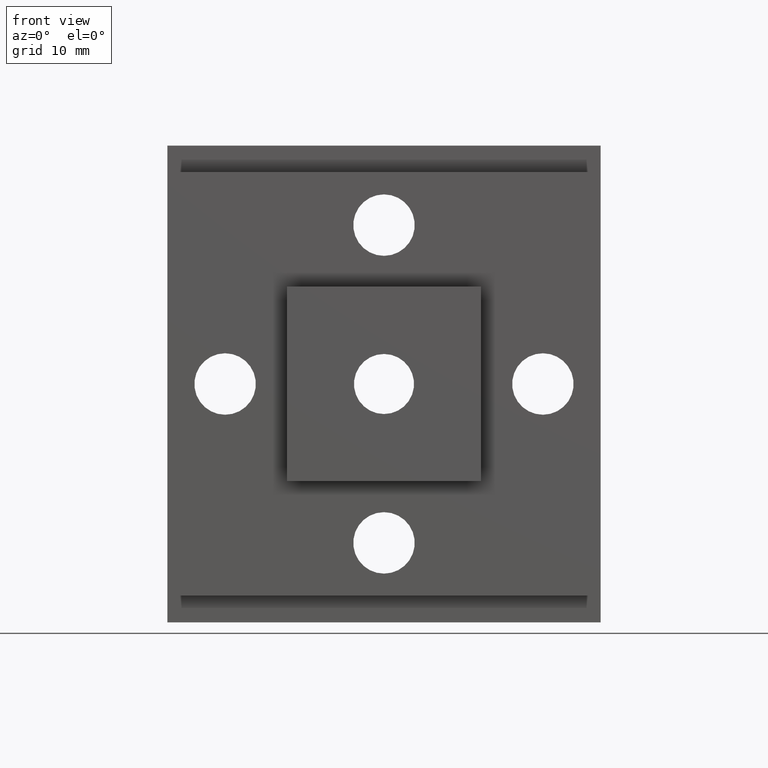
[diagram: clean part render]
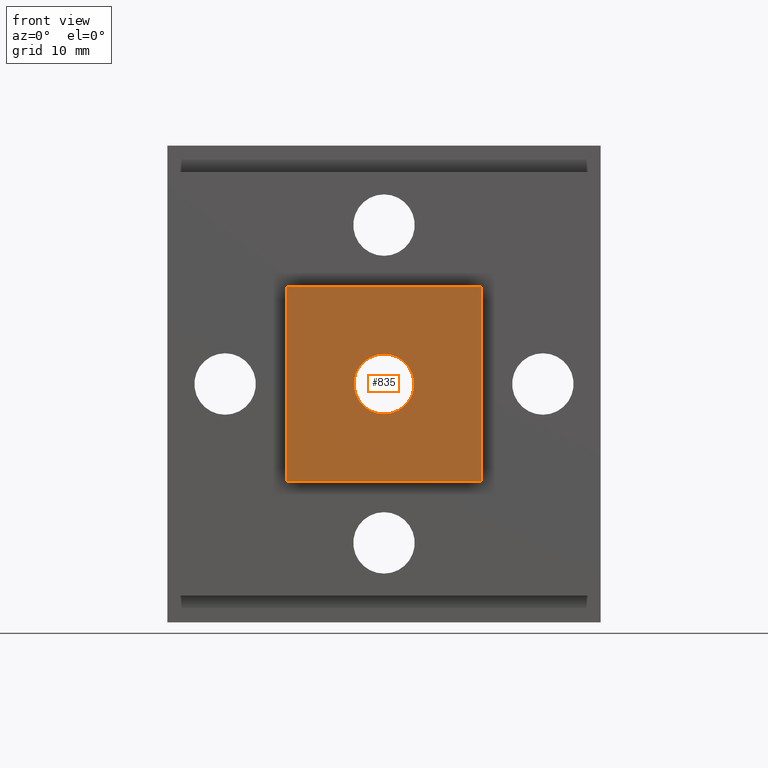
[diagram: same view with one face highlighted and labeled with its STEP entity id]
A machine part, front view. The second image highlights one B-rep face of the part: STEP entity #835.
In plain terms, the highlighted planar face has unit normal (0, -1, -0).
Its self-contained STEP definition (entity closure, byte-faithful):
#9 = VECTOR ( 'NONE', #1247, 39.37007874015748100 ) ;
#53 = EDGE_CURVE ( 'NONE', #1544, #1440, #626, .T. ) ;
#59 = EDGE_CURVE ( 'NONE', #1459, #1444, #621, .T. ) ;
#72 = AXIS2_PLACEMENT_3D ( 'NONE', #1275, #1267, #1268 ) ;
#87 = EDGE_CURVE ( 'NONE', #1461, #1480, #512, .T. ) ;
#89 = EDGE_CURVE ( 'NONE', #1440, #1459, #509, .T. ) ;
#104 = EDGE_CURVE ( 'NONE', #1444, #1544, #619, .T. ) ;
#107 = AXIS2_PLACEMENT_3D ( 'NONE', #1520, #1519, #1518 ) ;
#156 = VECTOR ( 'NONE', #1514, 39.37007874015748100 ) ;
#235 = CARTESIAN_POINT ( 'NONE',  ( 0.0000000000000000000, -0.1489999999999999700, 0.0000000000000000000 ) ) ;
#236 = DIRECTION ( 'NONE',  ( 1.309289925027225900E-017, -1.000000000000000000, 3.229997658014709200E-019 ) ) ;
#237 = DIRECTION ( 'NONE',  ( 2.081668171172166700E-017, 0.0000000000000000000, -1.000000000000000000 ) ) ;
#327 = CARTESIAN_POINT ( 'NONE',  ( -0.4204999999999992600, -0.1489999999999999700, 0.4205000000000000400 ) ) ;
#331 = CARTESIAN_POINT ( 'NONE',  ( 0.4204999999999995400, -0.1489999999999999700, -0.4204999999999989900 ) ) ;
#346 = CARTESIAN_POINT ( 'NONE',  ( -0.4204999999999992600, -0.1489999999999999700, -0.4204999999999989900 ) ) ;
#348 = CARTESIAN_POINT ( 'NONE',  ( 2.706168622523815700E-018, -0.1489999999999999700, -0.1299999999999999500 ) ) ;
#366 = CARTESIAN_POINT ( 'NONE',  ( 2.507314614903773900E-017, -0.1489999999999999700, 0.1300000000000000000 ) ) ;
#369 = CARTESIAN_POINT ( 'NONE',  ( 0.4204999999999995400, -0.1489999999999999700, 0.4205000000000000400 ) ) ;
#509 = LINE ( 'NONE', #1517, #156 ) ;
#512 = CIRCLE ( 'NONE', #107, 0.1299999999999999500 ) ;
#599 = EDGE_LOOP ( 'NONE', ( #1580, #1686 ) ) ;
#602 = EDGE_LOOP ( 'NONE', ( #1573, #1581, #1575, #1577 ) ) ;
#611 = VECTOR ( 'NONE', #1569, 39.37007874015748100 ) ;
#619 = LINE ( 'NONE', #1128, #9 ) ;
#621 = LINE ( 'NONE', #1509, #611 ) ;
#624 = VECTOR ( 'NONE', #1506, 39.37007874015748100 ) ;
#626 = LINE ( 'NONE', #1505, #624 ) ;
#835 = ADVANCED_FACE ( 'NONE', ( #1384, #1386 ), #1274, .T. ) ;
#1012 = CIRCLE ( 'NONE', #1300, 0.1299999999999999500 ) ;
#1128 = CARTESIAN_POINT ( 'NONE',  ( 0.4204999999999995400, -0.1489999999999999700, 0.4205000000000000400 ) ) ;
#1247 = DIRECTION ( 'NONE',  ( -2.644416514201875300E-016, -3.229997658014699600E-019, 1.000000000000000000 ) ) ;
#1267 = DIRECTION ( 'NONE',  ( 1.309289925027225900E-017, -1.000000000000000000, -3.229997658014709200E-019 ) ) ;
#1268 = DIRECTION ( 'NONE',  ( 2.081668171172166700E-017, 3.229997658014712100E-019, -1.000000000000000000 ) ) ;
#1274 = PLANE ( 'NONE',  #72 ) ;
#1275 = CARTESIAN_POINT ( 'NONE',  ( -0.4204999999999992600, -0.1489999999999999700, -0.4204999999999989900 ) ) ;
#1300 = AXIS2_PLACEMENT_3D ( 'NONE', #235, #236, #237 ) ;
#1344 = EDGE_CURVE ( 'NONE', #1480, #1461, #1012, .T. ) ;
#1384 = FACE_BOUND ( 'NONE', #599, .T. ) ;
#1386 = FACE_OUTER_BOUND ( 'NONE', #602, .T. ) ;
#1440 = VERTEX_POINT ( 'NONE', #327 ) ;
#1444 = VERTEX_POINT ( 'NONE', #331 ) ;
#1459 = VERTEX_POINT ( 'NONE', #346 ) ;
#1461 = VERTEX_POINT ( 'NONE', #348 ) ;
#1480 = VERTEX_POINT ( 'NONE', #366 ) ;
#1505 = CARTESIAN_POINT ( 'NONE',  ( -0.4204999999999992600, -0.1489999999999999700, 0.4205000000000000400 ) ) ;
#1506 = DIRECTION ( 'NONE',  ( -1.000000000000000000, 1.309289925027225900E-017, 2.081668171172167300E-017 ) ) ;
#1509 = CARTESIAN_POINT ( 'NONE',  ( -0.4204999999999992600, -0.1489999999999999700, -0.4204999999999989900 ) ) ;
#1514 = DIRECTION ( 'NONE',  ( 2.644416514201875300E-016, 3.229997658014699600E-019, -1.000000000000000000 ) ) ;
#1517 = CARTESIAN_POINT ( 'NONE',  ( -0.4204999999999992600, -0.1489999999999999700, 0.4205000000000000400 ) ) ;
#1518 = DIRECTION ( 'NONE',  ( 2.081668171172166700E-017, 0.0000000000000000000, -1.000000000000000000 ) ) ;
#1519 = DIRECTION ( 'NONE',  ( 1.309289925027225900E-017, -1.000000000000000000, 3.229997658014709200E-019 ) ) ;
#1520 = CARTESIAN_POINT ( 'NONE',  ( 0.0000000000000000000, -0.1489999999999999700, 0.0000000000000000000 ) ) ;
#1544 = VERTEX_POINT ( 'NONE', #369 ) ;
#1569 = DIRECTION ( 'NONE',  ( 1.000000000000000000, -1.309289925027225900E-017, -2.081668171172167300E-017 ) ) ;
#1573 = ORIENTED_EDGE ( 'NONE', *, *, #89, .T. ) ;
#1575 = ORIENTED_EDGE ( 'NONE', *, *, #104, .T. ) ;
#1577 = ORIENTED_EDGE ( 'NONE', *, *, #53, .T. ) ;
#1580 = ORIENTED_EDGE ( 'NONE', *, *, #87, .F. ) ;
#1581 = ORIENTED_EDGE ( 'NONE', *, *, #59, .T. ) ;
#1686 = ORIENTED_EDGE ( 'NONE', *, *, #1344, .F. ) ;